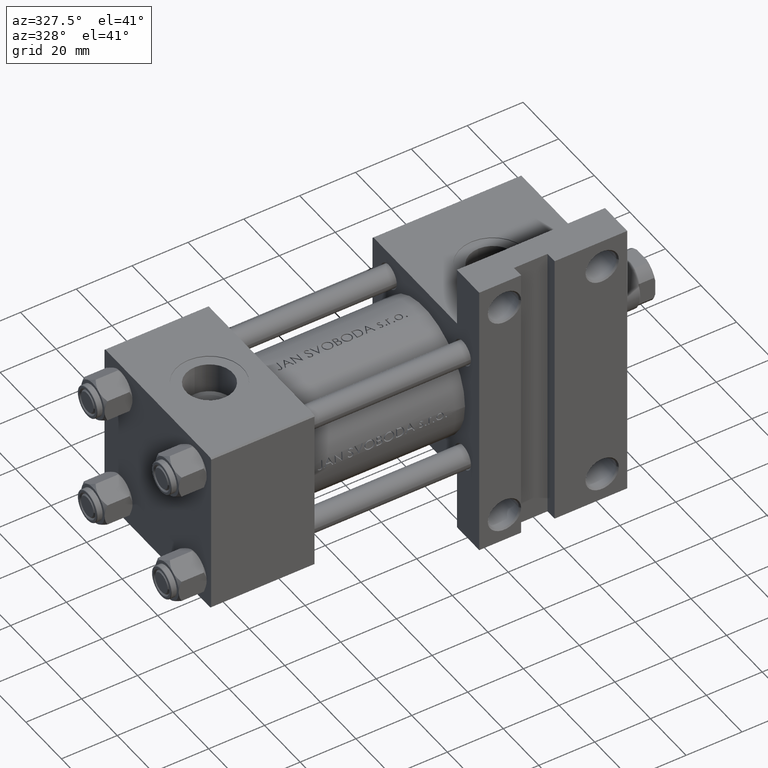
[diagram: clean part render]
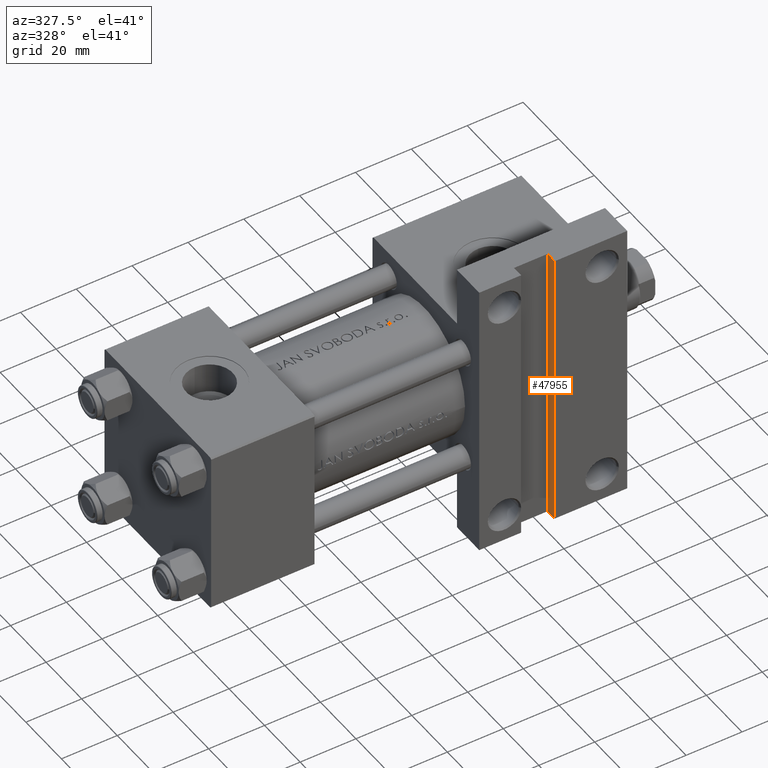
[diagram: same view with one face highlighted and labeled with its STEP entity id]
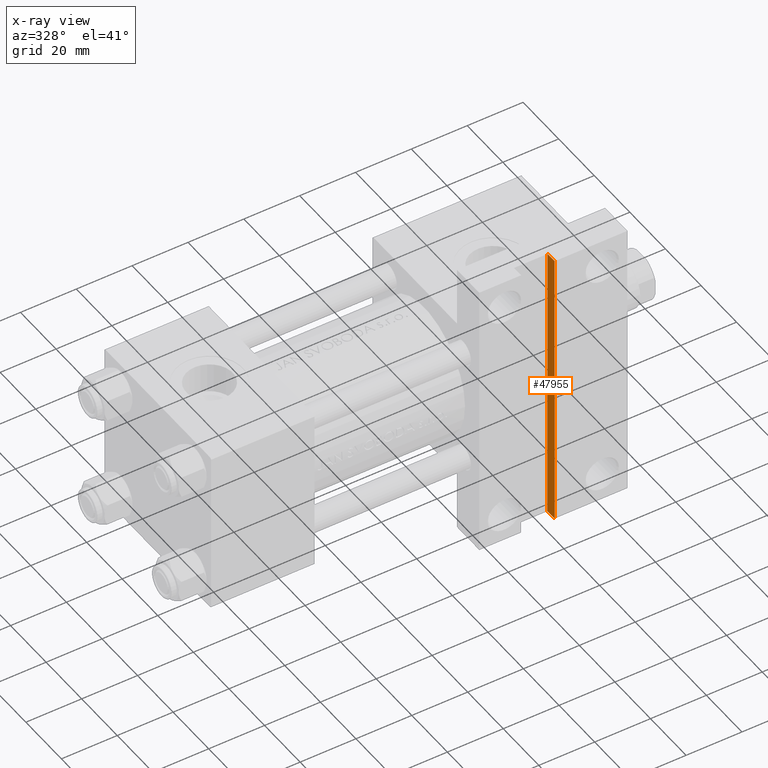
[diagram: x-ray of the same camera — body ghosted, the highlighted face saturated]
A machine part, auxiliary view. The second image highlights one B-rep face of the part: STEP entity #47955.
The next image is the same camera in x-ray: the body ghosted, the highlighted face saturated — about 0% of this face is hidden behind the body in this view.
In plain terms, the highlighted planar face has unit normal (1, 0, 0).
Its self-contained STEP definition (entity closure, byte-faithful):
#834 = VECTOR ( 'NONE', #19527, 1000.000000000000000 ) ;
#4952 = LINE ( 'NONE', #23693, #834 ) ;
#5745 = DIRECTION ( 'NONE',  ( -0.000000000000000000, -1.000000000000000000, -0.000000000000000000 ) ) ;
#6165 = CARTESIAN_POINT ( 'NONE',  ( 123.0000000000000000, 51.50000000000000711, -25.99999999999999645 ) ) ;
#7326 = PLANE ( 'NONE',  #22316 ) ;
#12376 = DIRECTION ( 'NONE',  ( -0.000000000000000000, -0.000000000000000000, -1.000000000000000000 ) ) ;
#13954 = VERTEX_POINT ( 'NONE', #18427 ) ;
#14678 = ORIENTED_EDGE ( 'NONE', *, *, #27265, .F. ) ;
#18427 = CARTESIAN_POINT ( 'NONE',  ( 123.0000000000000000, -51.50000000000000711, -25.99999999999999645 ) ) ;
#19527 = DIRECTION ( 'NONE',  ( -0.000000000000000000, -1.000000000000000000, -0.000000000000000000 ) ) ;
#20716 = DIRECTION ( 'NONE',  ( -0.000000000000000000, -0.000000000000000000, -1.000000000000000000 ) ) ;
#21458 = CARTESIAN_POINT ( 'NONE',  ( 123.0000000000000000, 51.50000000000000711, -29.99999999999999645 ) ) ;
#22316 = AXIS2_PLACEMENT_3D ( 'NONE', #43846, #44310, #40145 ) ;
#23693 = CARTESIAN_POINT ( 'NONE',  ( 123.0000000000000000, -51.50000000000000000, -25.99999999999999645 ) ) ;
#24656 = LINE ( 'NONE', #6165, #25990 ) ;
#25903 = ORIENTED_EDGE ( 'NONE', *, *, #26478, .T. ) ;
#25990 = VECTOR ( 'NONE', #20716, 1000.000000000000000 ) ;
#26478 = EDGE_CURVE ( 'NONE', #45040, #28456, #24656, .T. ) ;
#26636 = CARTESIAN_POINT ( 'NONE',  ( 123.0000000000000000, -51.50000000000000000, -29.99999999999999645 ) ) ;
#27150 = EDGE_CURVE ( 'NONE', #28456, #34743, #28432, .T. ) ;
#27265 = EDGE_CURVE ( 'NONE', #45040, #13954, #4952, .T. ) ;
#27593 = ORIENTED_EDGE ( 'NONE', *, *, #33748, .F. ) ;
#28432 = LINE ( 'NONE', #28665, #45702 ) ;
#28456 = VERTEX_POINT ( 'NONE', #21458 ) ;
#28665 = CARTESIAN_POINT ( 'NONE',  ( 123.0000000000000000, -51.50000000000000000, -29.99999999999999645 ) ) ;
#30398 = CARTESIAN_POINT ( 'NONE',  ( 123.0000000000000000, 51.50000000000000711, -25.99999999999999645 ) ) ;
#33748 = EDGE_CURVE ( 'NONE', #13954, #34743, #45402, .T. ) ;
#34743 = VERTEX_POINT ( 'NONE', #26636 ) ;
#36475 = VECTOR ( 'NONE', #12376, 1000.000000000000000 ) ;
#40145 = DIRECTION ( 'NONE',  ( 0.000000000000000000, 0.000000000000000000, -1.000000000000000000 ) ) ;
#43272 = ORIENTED_EDGE ( 'NONE', *, *, #27150, .T. ) ;
#43846 = CARTESIAN_POINT ( 'NONE',  ( 123.0000000000000000, -51.50000000000000000, -25.99999999999999645 ) ) ;
#44310 = DIRECTION ( 'NONE',  ( 1.000000000000000000, 0.000000000000000000, 0.000000000000000000 ) ) ;
#45040 = VERTEX_POINT ( 'NONE', #30398 ) ;
#45402 = LINE ( 'NONE', #46375, #36475 ) ;
#45702 = VECTOR ( 'NONE', #5745, 1000.000000000000000 ) ;
#46375 = CARTESIAN_POINT ( 'NONE',  ( 123.0000000000000000, -51.50000000000000000, -25.99999999999999645 ) ) ;
#47761 = FACE_OUTER_BOUND ( 'NONE', #47896, .T. ) ;
#47896 = EDGE_LOOP ( 'NONE', ( #43272, #27593, #14678, #25903 ) ) ;
#47955 = ADVANCED_FACE ( 'NONE', ( #47761 ), #7326, .F. ) ;